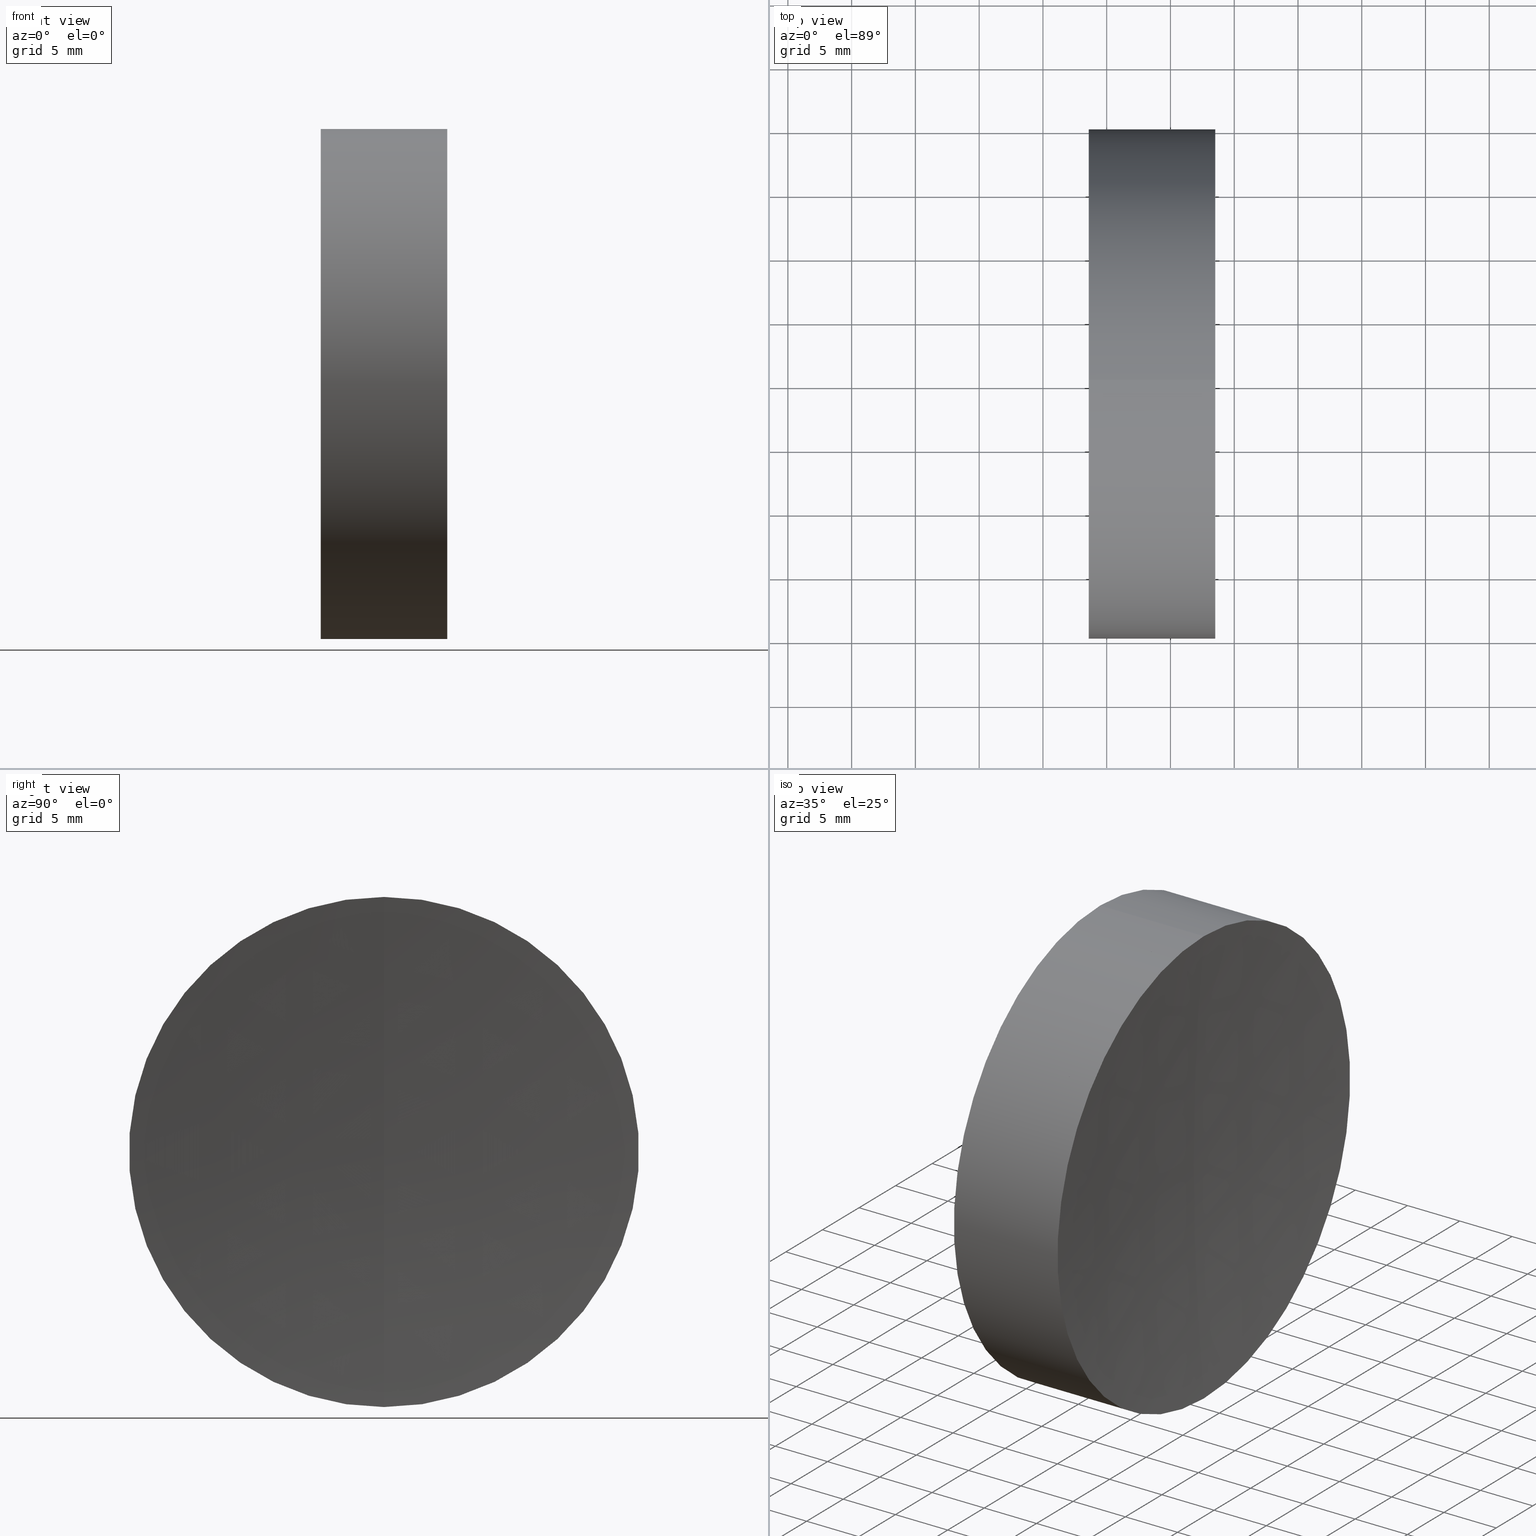
[diagram: canonical four-view strip — front | top / right | iso, engineering-drawing reading convention]
A machine part, canonical four-view strip (front | top / right | iso — engineering-drawing reading convention). The complete STEP part file that produces these views, byte-faithful:
ISO-10303-21;
HEADER;
FILE_DESCRIPTION (( 'STEP AP214' ),
    '1' );
FILE_NAME ('145203.STEP',
    '2019-06-13T08:07:17',
    ( 'user' ),
    ( '΢���й�' ),
    'SwSTEP 2.0',
    'SolidWorks 2016',
    '' );
FILE_SCHEMA (( 'AUTOMOTIVE_DESIGN' ));
ENDSEC;

DATA;
#1 = CARTESIAN_POINT ( 'NONE',  ( 253.5119500822572400, 0.0000000000000000000, 19.99999999999999600 ) ) ;
#2 = ORIENTED_EDGE ( 'NONE', *, *, #108, .T. ) ;
#3 = FACE_OUTER_BOUND ( 'NONE', #188, .T. ) ;
#4 = VERTEX_POINT ( 'NONE', #159 ) ;
#5 = APPLICATION_PROTOCOL_DEFINITION ( 'draft international standard', 'automotive_design', 1998, #117 ) ;
#6 = EDGE_CURVE ( 'NONE', #318, #11, #239, .T. ) ;
#7 = FACE_OUTER_BOUND ( 'NONE', #267, .T. ) ;
#8 = CYLINDRICAL_SURFACE ( 'NONE', #241, 20.00000000000004600 ) ;
#9 = ORIENTED_EDGE ( 'NONE', *, *, #270, .T. ) ;
#10 = ORIENTED_EDGE ( 'NONE', *, *, #252, .F. ) ;
#11 = VERTEX_POINT ( 'NONE', #256 ) ;
#12 =( NAMED_UNIT ( * ) SI_UNIT ( $, .STERADIAN. ) SOLID_ANGLE_UNIT ( ) );
#13 = CARTESIAN_POINT ( 'NONE',  ( 243.5932381383219400, 0.0000000000000000000, 0.0000000000000000000 ) ) ;
#14 = SPHERICAL_SURFACE ( 'NONE', #341, 91.62000000000000500 ) ;
#15 = SURFACE_STYLE_FILL_AREA ( #208 ) ;
#16 = DIRECTION ( 'NONE',  ( 0.0000000000000000000, 0.0000000000000000000, 1.000000000000000000 ) ) ;
#17 =( NAMED_UNIT ( * ) SI_UNIT ( $, .STERADIAN. ) SOLID_ANGLE_UNIT ( ) );
#18 = EDGE_LOOP ( 'NONE', ( #9, #140, #289 ) ) ;
#19 = ORIENTED_EDGE ( 'NONE', *, *, #108, .F. ) ;
#20 = EDGE_CURVE ( 'NONE', #92, #157, #266, .T. ) ;
#21 = DIRECTION ( 'NONE',  ( -1.000000000000000000, -0.0000000000000000000, -0.0000000000000000000 ) ) ;
#22 = CARTESIAN_POINT ( 'NONE',  ( -0.8160621761658076700, 2.449293598294712000E-015, -20.00000000000004600 ) ) ;
#23 = ADVANCED_FACE ( 'NONE', ( #338 ), #283, .F. ) ;
#24 = UNCERTAINTY_MEASURE_WITH_UNIT (LENGTH_MEASURE( 1.000000000000000100E-005 ), #292, 'distance_accuracy_value', 'NONE');
#25 = ADVANCED_FACE ( 'NONE', ( #37 ), #204, .T. ) ;
#26 = APPLICATION_CONTEXT ( 'automotive_design' ) ;
#27 = DIRECTION ( 'NONE',  ( -0.0000000000000000000, 1.000000000000000000, 0.0000000000000000000 ) ) ;
#28 = CIRCLE ( 'NONE', #263, 20.00000000000000400 ) ;
#29 = APPLICATION_PROTOCOL_DEFINITION ( 'draft international standard', 'automotive_design', 1998, #26 ) ;
#30 = CARTESIAN_POINT ( 'NONE',  ( 243.5932381383219400, 0.0000000000000000000, 19.99999999999998200 ) ) ;
#31 = LINE ( 'NONE', #316, #282 ) ;
#32 = EDGE_CURVE ( 'NONE', #318, #257, #139, .T. ) ;
#33 = DIRECTION ( 'NONE',  ( -1.000000000000000000, -0.0000000000000000000, 1.836970198721029400E-016 ) ) ;
#34 = ORIENTED_EDGE ( 'NONE', *, *, #6, .T. ) ;
#35 = FACE_OUTER_BOUND ( 'NONE', #18, .T. ) ;
#36 = CARTESIAN_POINT ( 'NONE',  ( -0.8160621761658039000, 0.0000000000000000000, 0.0000000000000000000 ) ) ;
#37 = FACE_OUTER_BOUND ( 'NONE', #45, .T. ) ;
#38 = CYLINDRICAL_SURFACE ( 'NONE', #167, 20.00000000000004600 ) ;
#39 = ORIENTED_EDGE ( 'NONE', *, *, #218, .F. ) ;
#40 = CARTESIAN_POINT ( 'NONE',  ( 318.1228114532870000, 0.0000000000000000000, 4.969613057672681700E-023 ) ) ;
#41 = DIRECTION ( 'NONE',  ( -0.0000000000000000000, -1.000000000000000000, -0.0000000000000000000 ) ) ;
#42 = EDGE_CURVE ( 'NONE', #73, #250, #43, .T. ) ;
#43 = CIRCLE ( 'NONE', #334, 20.00000000000004600 ) ;
#44 = AXIS2_PLACEMENT_3D ( 'NONE', #118, #98, #101 ) ;
#45 = EDGE_LOOP ( 'NONE', ( #305, #177, #19, #205 ) ) ;
#46 = ORIENTED_EDGE ( 'NONE', *, *, #252, .T. ) ;
#47 = DIRECTION ( 'NONE',  ( -1.000000000000000000, -0.0000000000000000000, 1.836970198721029400E-016 ) ) ;
#48 =( NAMED_UNIT ( * ) PLANE_ANGLE_UNIT ( ) SI_UNIT ( $, .RADIAN. ) );
#49 = ADVANCED_FACE ( 'NONE', ( #3 ), #161, .F. ) ;
#50 =( GEOMETRIC_REPRESENTATION_CONTEXT ( 3 ) GLOBAL_UNCERTAINTY_ASSIGNED_CONTEXT ( ( #115 ) ) GLOBAL_UNIT_ASSIGNED_CONTEXT ( ( #87, #48, #12 ) ) REPRESENTATION_CONTEXT ( 'NONE', 'WORKASPACE' ) );
#51 = ADVANCED_FACE ( 'NONE', ( #193 ), #314, .T. ) ;
#52 = ORIENTED_EDGE ( 'NONE', *, *, #6, .F. ) ;
#53 = EDGE_CURVE ( 'NONE', #257, #4, #137, .T. ) ;
#54 = ORIENTED_EDGE ( 'NONE', *, *, #125, .F. ) ;
#55 = ORIENTED_EDGE ( 'NONE', *, *, #62, .T. ) ;
#56 = DIRECTION ( 'NONE',  ( 0.0000000000000000000, 0.0000000000000000000, 1.000000000000000000 ) ) ;
#57 = ADVANCED_FACE ( 'NONE', ( #35 ), #133, .T. ) ;
#58 = CARTESIAN_POINT ( 'NONE',  ( 251.2286233649336100, -2.449293598294704100E-015, 19.99999999999998200 ) ) ;
#59 = FILL_AREA_STYLE_COLOUR ( '', #190 ) ;
#60 = SURFACE_SIDE_STYLE ('',( #206 ) ) ;
#61 = VECTOR ( 'NONE', #335, 1000.000000000000000 ) ;
#62 = EDGE_CURVE ( 'NONE', #73, #157, #90, .T. ) ;
#63 = DIRECTION ( 'NONE',  ( 0.0000000000000000000, 0.0000000000000000000, -1.000000000000000000 ) ) ;
#64 = SURFACE_STYLE_USAGE ( .BOTH. , #164 ) ;
#65 = EDGE_LOOP ( 'NONE', ( #89, #121, #294, #107 ) ) ;
#66 = FACE_OUTER_BOUND ( 'NONE', #105, .T. ) ;
#67 = AXIS2_PLACEMENT_3D ( 'NONE', #76, #260, #170 ) ;
#68 = ORIENTED_EDGE ( 'NONE', *, *, #125, .T. ) ;
#69 = ORIENTED_EDGE ( 'NONE', *, *, #218, .T. ) ;
#70 = DIRECTION ( 'NONE',  ( -0.0000000000000000000, 1.000000000000000000, 0.0000000000000000000 ) ) ;
#71 = AXIS2_PLACEMENT_3D ( 'NONE', #111, #247, #84 ) ;
#72 = CARTESIAN_POINT ( 'NONE',  ( 461.5528114532869500, 0.0000000000000000000, 0.0000000000000000000 ) ) ;
#73 = VERTEX_POINT ( 'NONE', #180 ) ;
#74 = VECTOR ( 'NONE', #102, 1000.000000000000000 ) ;
#75 = ORIENTED_EDGE ( 'NONE', *, *, #281, .F. ) ;
#76 = CARTESIAN_POINT ( 'NONE',  ( 243.5932381383219400, 0.0000000000000000000, -4.489726009679723200E-014 ) ) ;
#77 = DIRECTION ( 'NONE',  ( 3.029423228075628900E-016, 0.0000000000000000000, 1.000000000000000000 ) ) ;
#78 = ORIENTED_EDGE ( 'NONE', *, *, #42, .F. ) ;
#79 = CIRCLE ( 'NONE', #91, 69.82000000000002200 ) ;
#80 = AXIS2_PLACEMENT_3D ( 'NONE', #173, #202, #203 ) ;
#81 = FACE_OUTER_BOUND ( 'NONE', #93, .T. ) ;
#82 = ORIENTED_EDGE ( 'NONE', *, *, #32, .F. ) ;
#83 = DIRECTION ( 'NONE',  ( -1.000000000000000000, -0.0000000000000000000, 1.836970198721029400E-016 ) ) ;
#84 = DIRECTION ( 'NONE',  ( 0.0000000000000000000, 0.0000000000000000000, 1.000000000000000000 ) ) ;
#85 = PRODUCT_DEFINITION ( 'δ֪', '', #100, #122 ) ;
#86 = DIRECTION ( 'NONE',  ( -0.0000000000000000000, -1.000000000000000000, -0.0000000000000000000 ) ) ;
#87 =( LENGTH_UNIT ( ) NAMED_UNIT ( * ) SI_UNIT ( .MILLI., .METRE. ) );
#88 = ORIENTED_EDGE ( 'NONE', *, *, #320, .F. ) ;
#89 = ORIENTED_EDGE ( 'NONE', *, *, #53, .F. ) ;
#90 = LINE ( 'NONE', #262, #288 ) ;
#91 = AXIS2_PLACEMENT_3D ( 'NONE', #231, #255, #94 ) ;
#92 = VERTEX_POINT ( 'NONE', #324 ) ;
#93 = EDGE_LOOP ( 'NONE', ( #196, #109, #10, #265 ) ) ;
#94 = DIRECTION ( 'NONE',  ( 0.0000000000000000000, 1.224646799147353200E-016, -1.000000000000000000 ) ) ;
#95 = CARTESIAN_POINT ( 'NONE',  ( 154.1828114532870300, 0.0000000000000000000, 4.969511586685588200E-023 ) ) ;
#96 = CIRCLE ( 'NONE', #44, 20.00000000000000400 ) ;
#97 = DIRECTION ( 'NONE',  ( -0.0000000000000000000, 1.000000000000000000, 0.0000000000000000000 ) ) ;
#98 = DIRECTION ( 'NONE',  ( -1.000000000000000000, -0.0000000000000000000, -0.0000000000000000000 ) ) ;
#99 = CARTESIAN_POINT ( 'NONE',  ( 318.1228114532870000, 0.0000000000000000000, 4.969613057672681700E-023 ) ) ;
#100 = PRODUCT_DEFINITION_FORMATION_WITH_SPECIFIED_SOURCE ( '�κ�', '', #286, .NOT_KNOWN. ) ;
#101 = DIRECTION ( 'NONE',  ( 0.0000000000000000000, 0.0000000000000000000, 1.000000000000000000 ) ) ;
#102 = DIRECTION ( 'NONE',  ( -1.000000000000000000, -0.0000000000000000000, -0.0000000000000000000 ) ) ;
#103 = STYLED_ITEM ( 'NONE', ( #182 ), #131 ) ;
#104 = ADVANCED_FACE ( 'NONE', ( #113 ), #209, .F. ) ;
#105 = EDGE_LOOP ( 'NONE', ( #75, #68, #55, #303 ) ) ;
#106 = DIRECTION ( 'NONE',  ( 0.0000000000000000000, 0.0000000000000000000, -1.000000000000000000 ) ) ;
#107 = ORIENTED_EDGE ( 'NONE', *, *, #270, .F. ) ;
#108 = EDGE_CURVE ( 'NONE', #197, #4, #28, .T. ) ;
#109 = ORIENTED_EDGE ( 'NONE', *, *, #281, .T. ) ;
#110 =( GEOMETRIC_REPRESENTATION_CONTEXT ( 3 ) GLOBAL_UNCERTAINTY_ASSIGNED_CONTEXT ( ( #232 ) ) GLOBAL_UNIT_ASSIGNED_CONTEXT ( ( #119, #304, #277 ) ) REPRESENTATION_CONTEXT ( 'NONE', 'WORKASPACE' ) );
#111 = CARTESIAN_POINT ( 'NONE',  ( 318.1228114532870000, 0.0000000000000000000, 4.969613057672681700E-023 ) ) ;
#112 = EDGE_CURVE ( 'NONE', #257, #318, #169, .T. ) ;
#113 = FACE_OUTER_BOUND ( 'NONE', #299, .T. ) ;
#114 = VERTEX_POINT ( 'NONE', #268 ) ;
#115 = UNCERTAINTY_MEASURE_WITH_UNIT (LENGTH_MEASURE( 1.000000000000000100E-005 ), #87, 'distance_accuracy_value', 'NONE');
#116 = CARTESIAN_POINT ( 'NONE',  ( 0.0000000000000000000, 0.0000000000000000000, 0.0000000000000000000 ) ) ;
#117 = APPLICATION_CONTEXT ( 'automotive_design' ) ;
#118 = CARTESIAN_POINT ( 'NONE',  ( 251.2286233649336100, 0.0000000000000000000, 0.0000000000000000000 ) ) ;
#119 =( LENGTH_UNIT ( ) NAMED_UNIT ( * ) SI_UNIT ( .MILLI., .METRE. ) );
#120 =( GEOMETRIC_REPRESENTATION_CONTEXT ( 3 ) GLOBAL_UNCERTAINTY_ASSIGNED_CONTEXT ( ( #24 ) ) GLOBAL_UNIT_ASSIGNED_CONTEXT ( ( #292, #345, #17 ) ) REPRESENTATION_CONTEXT ( 'NONE', 'WORKASPACE' ) );
#121 = ORIENTED_EDGE ( 'NONE', *, *, #112, .T. ) ;
#122 = PRODUCT_DEFINITION_CONTEXT ( 'detailed design', #117, 'design' ) ;
#123 = DIRECTION ( 'NONE',  ( -1.000000000000000000, -0.0000000000000000000, -0.0000000000000000000 ) ) ;
#124 = ORIENTED_EDGE ( 'NONE', *, *, #189, .F. ) ;
#125 = EDGE_CURVE ( 'NONE', #250, #73, #311, .T. ) ;
#126 = DIRECTION ( 'NONE',  ( 1.843143693225353300E-016, 0.0000000000000000000, 1.000000000000000000 ) ) ;
#127 = DIRECTION ( 'NONE',  ( -1.000000000000000000, -0.0000000000000000000, 1.836970198721029400E-016 ) ) ;
#128 =( NAMED_UNIT ( * ) SI_UNIT ( $, .STERADIAN. ) SOLID_ANGLE_UNIT ( ) );
#129 = PRESENTATION_LAYER_ASSIGNMENT (  '', '', ( #103 ) ) ;
#130 = CARTESIAN_POINT ( 'NONE',  ( 243.5932381383219400, 0.0000000000000000000, 0.0000000000000000000 ) ) ;
#131 = ADVANCED_BREP_SHAPE_REPRESENTATION ( '145203', ( #215, #307, #148 ), #110 ) ;
#132 = CIRCLE ( 'NONE', #67, 20.00000000000004600 ) ;
#133 = SPHERICAL_SURFACE ( 'NONE', #309, 69.82000000000000700 ) ;
#134 = ADVANCED_FACE ( 'NONE', ( #81 ), #8, .T. ) ;
#135 = CARTESIAN_POINT ( 'NONE',  ( 251.2286233649336100, 2.449293598294712000E-015, -20.00000000000009200 ) ) ;
#136 = ADVANCED_FACE ( 'NONE', ( #312 ), #222, .F. ) ;
#137 = LINE ( 'NONE', #142, #74 ) ;
#138 = AXIS2_PLACEMENT_3D ( 'NONE', #238, #70, #317 ) ;
#139 = CIRCLE ( 'NONE', #326, 19.99999999999999600 ) ;
#140 = ORIENTED_EDGE ( 'NONE', *, *, #230, .T. ) ;
#141 = MECHANICAL_DESIGN_GEOMETRIC_PRESENTATION_REPRESENTATION (  '', ( #103 ), #120 ) ;
#142 = CARTESIAN_POINT ( 'NONE',  ( 243.5932381383219400, 2.449293598294706500E-015, -20.00000000000000000 ) ) ;
#143 = SURFACE_STYLE_USAGE ( .BOTH. , #264 ) ;
#144 = CARTESIAN_POINT ( 'NONE',  ( 154.1828114532870300, 0.0000000000000000000, 4.969511586685588200E-023 ) ) ;
#145 = DIRECTION ( 'NONE',  ( 0.0000000000000000000, 0.0000000000000000000, 1.000000000000000000 ) ) ;
#146 = DIRECTION ( 'NONE',  ( 3.029423228075628900E-016, 0.0000000000000000000, 1.000000000000000000 ) ) ;
#147 = ORIENTED_EDGE ( 'NONE', *, *, #230, .F. ) ;
#148 = AXIS2_PLACEMENT_3D ( 'NONE', #116, #145, #333 ) ;
#149 = FACE_OUTER_BOUND ( 'NONE', #65, .T. ) ;
#150 = DIRECTION ( 'NONE',  ( -0.0000000000000000000, -1.000000000000000000, -0.0000000000000000000 ) ) ;
#151 = CARTESIAN_POINT ( 'NONE',  ( 318.1228114532870000, 0.0000000000000000000, 4.969613057672681700E-023 ) ) ;
#152 = ORIENTED_EDGE ( 'NONE', *, *, #244, .T. ) ;
#153 = CARTESIAN_POINT ( 'NONE',  ( 461.5528114532869500, 0.0000000000000000000, 0.0000000000000000000 ) ) ;
#154 = CARTESIAN_POINT ( 'NONE',  ( 251.2286233649336100, 0.0000000000000000000, 0.0000000000000000000 ) ) ;
#155 = MECHANICAL_DESIGN_GEOMETRIC_PRESENTATION_REPRESENTATION (  '', ( #171 ), #50 ) ;
#156 = CLOSED_SHELL ( 'NONE', ( #104, #134, #195, #49, #271, #136 ) ) ;
#157 = VERTEX_POINT ( 'NONE', #30 ) ;
#158 = PRESENTATION_LAYER_ASSIGNMENT (  '', '', ( #171 ) ) ;
#159 = CARTESIAN_POINT ( 'NONE',  ( 251.2286233649336100, 0.0000000000000000000, -19.99999999999998200 ) ) ;
#160 = EDGE_LOOP ( 'NONE', ( #181, #54, #279 ) ) ;
#161 = SPHERICAL_SURFACE ( 'NONE', #178, 91.62000000000000500 ) ;
#162 = AXIS2_PLACEMENT_3D ( 'NONE', #130, #211, #322 ) ;
#163 = ADVANCED_FACE ( 'NONE', ( #149 ), #329, .T. ) ;
#164 = SURFACE_SIDE_STYLE ('',( #219 ) ) ;
#165 = FILL_AREA_STYLE ('',( #59 ) ) ;
#166 = CIRCLE ( 'NONE', #269, 20.00000000000004600 ) ;
#167 = AXIS2_PLACEMENT_3D ( 'NONE', #36, #210, #278 ) ;
#168 = CARTESIAN_POINT ( 'NONE',  ( 248.3028114532870300, 0.0000000000000000000, -4.275241926127279900E-015 ) ) ;
#169 = CIRCLE ( 'NONE', #183, 19.99999999999999600 ) ;
#170 = DIRECTION ( 'NONE',  ( 0.0000000000000000000, 0.0000000000000000000, 1.000000000000000000 ) ) ;
#171 = STYLED_ITEM ( 'NONE', ( #248 ), #215 ) ;
#172 = ORIENTED_EDGE ( 'NONE', *, *, #112, .F. ) ;
#173 = CARTESIAN_POINT ( 'NONE',  ( 154.1828114532870300, 0.0000000000000000000, 4.969511586685588200E-023 ) ) ;
#174 = CARTESIAN_POINT ( 'NONE',  ( 251.2286233649336100, 0.0000000000000000000, -4.629985760850127900E-014 ) ) ;
#175 = AXIS2_PLACEMENT_3D ( 'NONE', #259, #201, #186 ) ;
#176 = CIRCLE ( 'NONE', #280, 209.0000000000000300 ) ;
#177 = ORIENTED_EDGE ( 'NONE', *, *, #53, .T. ) ;
#178 = AXIS2_PLACEMENT_3D ( 'NONE', #144, #27, #146 ) ;
#179 = CARTESIAN_POINT ( 'NONE',  ( 318.1228114532870000, 0.0000000000000000000, 4.969613057672681700E-023 ) ) ;
#180 = CARTESIAN_POINT ( 'NONE',  ( 251.2286233649336100, 0.0000000000000000000, 20.00000000000000000 ) ) ;
#181 = ORIENTED_EDGE ( 'NONE', *, *, #331, .F. ) ;
#182 = PRESENTATION_STYLE_ASSIGNMENT (( #261 ) ) ;
#183 = AXIS2_PLACEMENT_3D ( 'NONE', #297, #258, #224 ) ;
#184 = CARTESIAN_POINT ( 'NONE',  ( 253.5119500822572400, 0.0000000000000000000, 0.0000000000000000000 ) ) ;
#185 = CARTESIAN_POINT ( 'NONE',  ( 243.5932381383219400, 0.0000000000000000000, -4.489726009679723200E-014 ) ) ;
#186 = DIRECTION ( 'NONE',  ( 0.0000000000000000000, 1.224646799147353200E-016, -1.000000000000000000 ) ) ;
#187 = CARTESIAN_POINT ( 'NONE',  ( 253.5119500822572400, 2.449293598294706500E-015, -19.99999999999999600 ) ) ;
#188 = EDGE_LOOP ( 'NONE', ( #88, #200, #46 ) ) ;
#189 = EDGE_CURVE ( 'NONE', #250, #315, #275, .T. ) ;
#190 = COLOUR_RGB ( '',1.000000000000000000, 1.000000000000000000, 1.000000000000000000 ) ;
#191 = DIRECTION ( 'NONE',  ( 0.0000000000000000000, 1.224646799147353200E-016, -1.000000000000000000 ) ) ;
#192 = ADVANCED_FACE ( 'NONE', ( #308 ), #235, .F. ) ;
#193 = FACE_OUTER_BOUND ( 'NONE', #240, .T. ) ;
#194 = CARTESIAN_POINT ( 'NONE',  ( 154.1828114532870300, 0.0000000000000000000, 4.969511586685588200E-023 ) ) ;
#195 = ADVANCED_FACE ( 'NONE', ( #7 ), #14, .F. ) ;
#196 = ORIENTED_EDGE ( 'NONE', *, *, #42, .T. ) ;
#197 = VERTEX_POINT ( 'NONE', #58 ) ;
#198 = CARTESIAN_POINT ( 'NONE',  ( -0.8160621761658039000, 0.0000000000000000000, 0.0000000000000000000 ) ) ;
#199 = MECHANICAL_DESIGN_GEOMETRIC_PRESENTATION_REPRESENTATION (  '', ( #216 ), #254 ) ;
#200 = ORIENTED_EDGE ( 'NONE', *, *, #20, .T. ) ;
#201 = DIRECTION ( 'NONE',  ( 0.0000000000000000000, -1.000000000000000000, -1.224646799147353200E-016 ) ) ;
#202 = DIRECTION ( 'NONE',  ( 2.249639673992786100E-032, 1.000000000000000000, 1.224646799147353200E-016 ) ) ;
#203 = DIRECTION ( 'NONE',  ( 0.0000000000000000000, -1.224646799147353200E-016, 1.000000000000000000 ) ) ;
#204 = CYLINDRICAL_SURFACE ( 'NONE', #162, 20.00000000000000000 ) ;
#205 = ORIENTED_EDGE ( 'NONE', *, *, #237, .F. ) ;
#206 = SURFACE_STYLE_FILL_AREA ( #325 ) ;
#207 = DIRECTION ( 'NONE',  ( 0.0000000000000000000, -1.000000000000000000, -1.224646799147353200E-016 ) ) ;
#208 = FILL_AREA_STYLE ('',( #214 ) ) ;
#209 = SPHERICAL_SURFACE ( 'NONE', #298, 69.82000000000002200 ) ;
#210 = DIRECTION ( 'NONE',  ( -1.000000000000000000, -0.0000000000000000000, 1.836970198721029400E-016 ) ) ;
#211 = DIRECTION ( 'NONE',  ( -1.000000000000000000, -0.0000000000000000000, -0.0000000000000000000 ) ) ;
#212 = DIRECTION ( 'NONE',  ( -0.0000000000000000000, -1.000000000000000000, -0.0000000000000000000 ) ) ;
#213 = PRESENTATION_LAYER_ASSIGNMENT (  '', '', ( #216 ) ) ;
#214 = FILL_AREA_STYLE_COLOUR ( '', #276 ) ;
#215 = MANIFOLD_SOLID_BREP ( '��ת1', #156 ) ;
#216 = STYLED_ITEM ( 'NONE', ( #272 ), #307 ) ;
#217 = CARTESIAN_POINT ( 'NONE',  ( 248.3028114532870100, 0.0000000000000000000, 8.550484001342952200E-015 ) ) ;
#218 = EDGE_CURVE ( 'NONE', #257, #11, #176, .T. ) ;
#219 = SURFACE_STYLE_FILL_AREA ( #165 ) ;
#220 = COLOUR_RGB ( '',1.000000000000000000, 1.000000000000000000, 1.000000000000000000 ) ;
#221 = AXIS2_PLACEMENT_3D ( 'NONE', #301, #207, #191 ) ;
#222 = SPHERICAL_SURFACE ( 'NONE', #313, 69.82000000000002200 ) ;
#223 = EDGE_LOOP ( 'NONE', ( #52, #172, #69 ) ) ;
#224 = DIRECTION ( 'NONE',  ( 0.0000000000000000000, 0.0000000000000000000, 1.000000000000000000 ) ) ;
#225 = CIRCLE ( 'NONE', #80, 91.62000000000000500 ) ;
#226 = DIRECTION ( 'NONE',  ( 0.0000000000000000000, 0.0000000000000000000, 1.000000000000000000 ) ) ;
#227 = ORIENTED_EDGE ( 'NONE', *, *, #320, .T. ) ;
#228 =( NAMED_UNIT ( * ) PLANE_ANGLE_UNIT ( ) SI_UNIT ( $, .RADIAN. ) );
#229 = AXIS2_PLACEMENT_3D ( 'NONE', #13, #287, #16 ) ;
#230 = EDGE_CURVE ( 'NONE', #197, #285, #328, .T. ) ;
#231 = CARTESIAN_POINT ( 'NONE',  ( 318.1228114532870000, 0.0000000000000000000, 4.969613057672681700E-023 ) ) ;
#232 = UNCERTAINTY_MEASURE_WITH_UNIT (LENGTH_MEASURE( 1.000000000000000100E-005 ), #119, 'distance_accuracy_value', 'NONE');
#233 = DIRECTION ( 'NONE',  ( 0.0000000000000000000, 0.0000000000000000000, 1.000000000000000000 ) ) ;
#234 = AXIS2_PLACEMENT_3D ( 'NONE', #179, #347, #340 ) ;
#235 = SPHERICAL_SURFACE ( 'NONE', #346, 209.0000000000000300 ) ;
#236 = AXIS2_PLACEMENT_3D ( 'NONE', #321, #83, #330 ) ;
#237 = EDGE_CURVE ( 'NONE', #318, #197, #31, .T. ) ;
#238 = CARTESIAN_POINT ( 'NONE',  ( 318.1228114532870000, 0.0000000000000000000, 4.969613057672681700E-023 ) ) ;
#239 = CIRCLE ( 'NONE', #175, 209.0000000000000300 ) ;
#240 = EDGE_LOOP ( 'NONE', ( #147, #2, #296 ) ) ;
#241 = AXIS2_PLACEMENT_3D ( 'NONE', #198, #47, #126 ) ;
#242 = DIRECTION ( 'NONE',  ( 0.0000000000000000000, 1.000000000000000000, -0.0000000000000000000 ) ) ;
#243 =( LENGTH_UNIT ( ) NAMED_UNIT ( * ) SI_UNIT ( .MILLI., .METRE. ) );
#244 = EDGE_CURVE ( 'NONE', #114, #157, #132, .T. ) ;
#245 = DIRECTION ( 'NONE',  ( 0.0000000000000000000, -1.000000000000000000, 0.0000000000000000000 ) ) ;
#246 = CLOSED_SHELL ( 'NONE', ( #23, #25, #57, #51, #163, #192 ) ) ;
#247 = DIRECTION ( 'NONE',  ( 0.0000000000000000000, 1.000000000000000000, -0.0000000000000000000 ) ) ;
#248 = PRESENTATION_STYLE_ASSIGNMENT (( #143 ) ) ;
#249 = ORIENTED_EDGE ( 'NONE', *, *, #20, .F. ) ;
#250 = VERTEX_POINT ( 'NONE', #135 ) ;
#251 = AXIS2_PLACEMENT_3D ( 'NONE', #194, #245, #63 ) ;
#252 = EDGE_CURVE ( 'NONE', #157, #114, #166, .T. ) ;
#253 = CIRCLE ( 'NONE', #71, 69.82000000000000700 ) ;
#254 =( GEOMETRIC_REPRESENTATION_CONTEXT ( 3 ) GLOBAL_UNCERTAINTY_ASSIGNED_CONTEXT ( ( #343 ) ) GLOBAL_UNIT_ASSIGNED_CONTEXT ( ( #243, #228, #128 ) ) REPRESENTATION_CONTEXT ( 'NONE', 'WORKASPACE' ) );
#255 = DIRECTION ( 'NONE',  ( -2.249639673992786100E-032, -1.000000000000000000, -1.224646799147353200E-016 ) ) ;
#256 = CARTESIAN_POINT ( 'NONE',  ( 252.5528114532869500, 0.0000000000000000000, -1.279755905108984200E-014 ) ) ;
#257 = VERTEX_POINT ( 'NONE', #187 ) ;
#258 = DIRECTION ( 'NONE',  ( -1.000000000000000000, -0.0000000000000000000, -0.0000000000000000000 ) ) ;
#259 = CARTESIAN_POINT ( 'NONE',  ( 461.5528114532869500, 0.0000000000000000000, 0.0000000000000000000 ) ) ;
#260 = DIRECTION ( 'NONE',  ( -1.000000000000000000, -0.0000000000000000000, 1.836970198721029400E-016 ) ) ;
#261 = SURFACE_STYLE_USAGE ( .BOTH. , #60 ) ;
#262 = CARTESIAN_POINT ( 'NONE',  ( -0.8160621761658002300, 0.0000000000000000000, 20.00000000000004600 ) ) ;
#263 = AXIS2_PLACEMENT_3D ( 'NONE', #154, #342, #293 ) ;
#264 = SURFACE_SIDE_STYLE ('',( #15 ) ) ;
#265 = ORIENTED_EDGE ( 'NONE', *, *, #62, .F. ) ;
#266 = CIRCLE ( 'NONE', #251, 91.62000000000000500 ) ;
#267 = EDGE_LOOP ( 'NONE', ( #249, #227, #152 ) ) ;
#268 = CARTESIAN_POINT ( 'NONE',  ( 243.5932381383219400, 2.449293598294710100E-015, -20.00000000000004600 ) ) ;
#269 = AXIS2_PLACEMENT_3D ( 'NONE', #185, #33, #233 ) ;
#270 = EDGE_CURVE ( 'NONE', #4, #197, #96, .T. ) ;
#271 = ADVANCED_FACE ( 'NONE', ( #66 ), #38, .T. ) ;
#272 = PRESENTATION_STYLE_ASSIGNMENT (( #64 ) ) ;
#273 = PRODUCT_RELATED_PRODUCT_CATEGORY ( 'part', '', ( #286 ) ) ;
#274 = DIRECTION ( 'NONE',  ( -0.0000000000000000000, -1.000000000000000000, -0.0000000000000000000 ) ) ;
#275 = CIRCLE ( 'NONE', #138, 69.82000000000002200 ) ;
#276 = COLOUR_RGB ( '',1.000000000000000000, 1.000000000000000000, 1.000000000000000000 ) ;
#277 =( NAMED_UNIT ( * ) SI_UNIT ( $, .STERADIAN. ) SOLID_ANGLE_UNIT ( ) );
#278 = DIRECTION ( 'NONE',  ( 1.843143693225353300E-016, 0.0000000000000000000, 1.000000000000000000 ) ) ;
#279 = ORIENTED_EDGE ( 'NONE', *, *, #189, .T. ) ;
#280 = AXIS2_PLACEMENT_3D ( 'NONE', #72, #242, #56 ) ;
#281 = EDGE_CURVE ( 'NONE', #250, #114, #302, .T. ) ;
#282 = VECTOR ( 'NONE', #123, 1000.000000000000000 ) ;
#283 = SPHERICAL_SURFACE ( 'NONE', #290, 209.0000000000000300 ) ;
#284 = FILL_AREA_STYLE_COLOUR ( '', #220 ) ;
#285 = VERTEX_POINT ( 'NONE', #168 ) ;
#286 = PRODUCT ( '145203', '145203', '', ( #306 ) ) ;
#287 = DIRECTION ( 'NONE',  ( -1.000000000000000000, -0.0000000000000000000, -0.0000000000000000000 ) ) ;
#288 = VECTOR ( 'NONE', #127, 1000.000000000000000 ) ;
#289 = ORIENTED_EDGE ( 'NONE', *, *, #336, .F. ) ;
#290 = AXIS2_PLACEMENT_3D ( 'NONE', #310, #150, #106 ) ;
#291 = DIRECTION ( 'NONE',  ( 0.0000000000000000000, 0.0000000000000000000, -1.000000000000000000 ) ) ;
#292 =( LENGTH_UNIT ( ) NAMED_UNIT ( * ) SI_UNIT ( .MILLI., .METRE. ) );
#293 = DIRECTION ( 'NONE',  ( 0.0000000000000000000, 0.0000000000000000000, 1.000000000000000000 ) ) ;
#294 = ORIENTED_EDGE ( 'NONE', *, *, #237, .T. ) ;
#295 = DIRECTION ( 'NONE',  ( 0.0000000000000000000, 0.0000000000000000000, 1.000000000000000000 ) ) ;
#296 = ORIENTED_EDGE ( 'NONE', *, *, #336, .T. ) ;
#297 = CARTESIAN_POINT ( 'NONE',  ( 253.5119500822572400, 0.0000000000000000000, 0.0000000000000000000 ) ) ;
#298 = AXIS2_PLACEMENT_3D ( 'NONE', #40, #41, #344 ) ;
#299 = EDGE_LOOP ( 'NONE', ( #78, #337, #124 ) ) ;
#300 = PRODUCT_DEFINITION_SHAPE ( 'NONE', 'NONE',  #85 ) ;
#301 = CARTESIAN_POINT ( 'NONE',  ( 318.1228114532870000, 0.0000000000000000000, 4.969613057672681700E-023 ) ) ;
#302 = LINE ( 'NONE', #22, #61 ) ;
#303 = ORIENTED_EDGE ( 'NONE', *, *, #244, .F. ) ;
#304 =( NAMED_UNIT ( * ) PLANE_ANGLE_UNIT ( ) SI_UNIT ( $, .RADIAN. ) );
#305 = ORIENTED_EDGE ( 'NONE', *, *, #32, .T. ) ;
#306 = PRODUCT_CONTEXT ( 'NONE', #26, 'mechanical' ) ;
#307 = MANIFOLD_SOLID_BREP ( '��ת3', #246 ) ;
#308 = FACE_OUTER_BOUND ( 'NONE', #223, .T. ) ;
#309 = AXIS2_PLACEMENT_3D ( 'NONE', #151, #86, #339 ) ;
#310 = CARTESIAN_POINT ( 'NONE',  ( 461.5528114532869500, 0.0000000000000000000, 0.0000000000000000000 ) ) ;
#311 = CIRCLE ( 'NONE', #236, 20.00000000000004600 ) ;
#312 = FACE_OUTER_BOUND ( 'NONE', #160, .T. ) ;
#313 = AXIS2_PLACEMENT_3D ( 'NONE', #99, #274, #291 ) ;
#314 = SPHERICAL_SURFACE ( 'NONE', #234, 69.82000000000000700 ) ;
#315 = VERTEX_POINT ( 'NONE', #217 ) ;
#316 = CARTESIAN_POINT ( 'NONE',  ( 243.5932381383219400, 0.0000000000000000000, 20.00000000000000000 ) ) ;
#317 = DIRECTION ( 'NONE',  ( 0.0000000000000000000, 0.0000000000000000000, 1.000000000000000000 ) ) ;
#318 = VERTEX_POINT ( 'NONE', #1 ) ;
#319 = EDGE_LOOP ( 'NONE', ( #82, #34, #39 ) ) ;
#320 = EDGE_CURVE ( 'NONE', #92, #114, #225, .T. ) ;
#321 = CARTESIAN_POINT ( 'NONE',  ( 251.2286233649336100, 0.0000000000000000000, -4.629985760850127900E-014 ) ) ;
#322 = DIRECTION ( 'NONE',  ( 0.0000000000000000000, 0.0000000000000000000, 1.000000000000000000 ) ) ;
#323 = SHAPE_DEFINITION_REPRESENTATION ( #300, #131 ) ;
#324 = CARTESIAN_POINT ( 'NONE',  ( 245.8028114532870300, 0.0000000000000000000, -1.122021392409293200E-014 ) ) ;
#325 = FILL_AREA_STYLE ('',( #284 ) ) ;
#326 = AXIS2_PLACEMENT_3D ( 'NONE', #184, #21, #226 ) ;
#327 = DIRECTION ( 'NONE',  ( -1.000000000000000000, -0.0000000000000000000, 1.836970198721029400E-016 ) ) ;
#328 = CIRCLE ( 'NONE', #221, 69.82000000000000700 ) ;
#329 = CYLINDRICAL_SURFACE ( 'NONE', #229, 20.00000000000000000 ) ;
#330 = DIRECTION ( 'NONE',  ( 0.0000000000000000000, 0.0000000000000000000, 1.000000000000000000 ) ) ;
#331 = EDGE_CURVE ( 'NONE', #73, #315, #79, .T. ) ;
#332 = DIRECTION ( 'NONE',  ( 0.0000000000000000000, 0.0000000000000000000, -1.000000000000000000 ) ) ;
#333 = DIRECTION ( 'NONE',  ( 1.000000000000000000, 0.0000000000000000000, 0.0000000000000000000 ) ) ;
#334 = AXIS2_PLACEMENT_3D ( 'NONE', #174, #327, #295 ) ;
#335 = DIRECTION ( 'NONE',  ( -1.000000000000000000, -0.0000000000000000000, 1.836970198721029400E-016 ) ) ;
#336 = EDGE_CURVE ( 'NONE', #4, #285, #253, .T. ) ;
#337 = ORIENTED_EDGE ( 'NONE', *, *, #331, .T. ) ;
#338 = FACE_OUTER_BOUND ( 'NONE', #319, .T. ) ;
#339 = DIRECTION ( 'NONE',  ( 0.0000000000000000000, 0.0000000000000000000, -1.000000000000000000 ) ) ;
#340 = DIRECTION ( 'NONE',  ( 0.0000000000000000000, 0.0000000000000000000, -1.000000000000000000 ) ) ;
#341 = AXIS2_PLACEMENT_3D ( 'NONE', #95, #97, #77 ) ;
#342 = DIRECTION ( 'NONE',  ( -1.000000000000000000, -0.0000000000000000000, -0.0000000000000000000 ) ) ;
#343 = UNCERTAINTY_MEASURE_WITH_UNIT (LENGTH_MEASURE( 1.000000000000000100E-005 ), #243, 'distance_accuracy_value', 'NONE');
#344 = DIRECTION ( 'NONE',  ( 0.0000000000000000000, 0.0000000000000000000, -1.000000000000000000 ) ) ;
#345 =( NAMED_UNIT ( * ) PLANE_ANGLE_UNIT ( ) SI_UNIT ( $, .RADIAN. ) );
#346 = AXIS2_PLACEMENT_3D ( 'NONE', #153, #212, #332 ) ;
#347 = DIRECTION ( 'NONE',  ( -0.0000000000000000000, -1.000000000000000000, -0.0000000000000000000 ) ) ;
ENDSEC;
END-ISO-10303-21;
